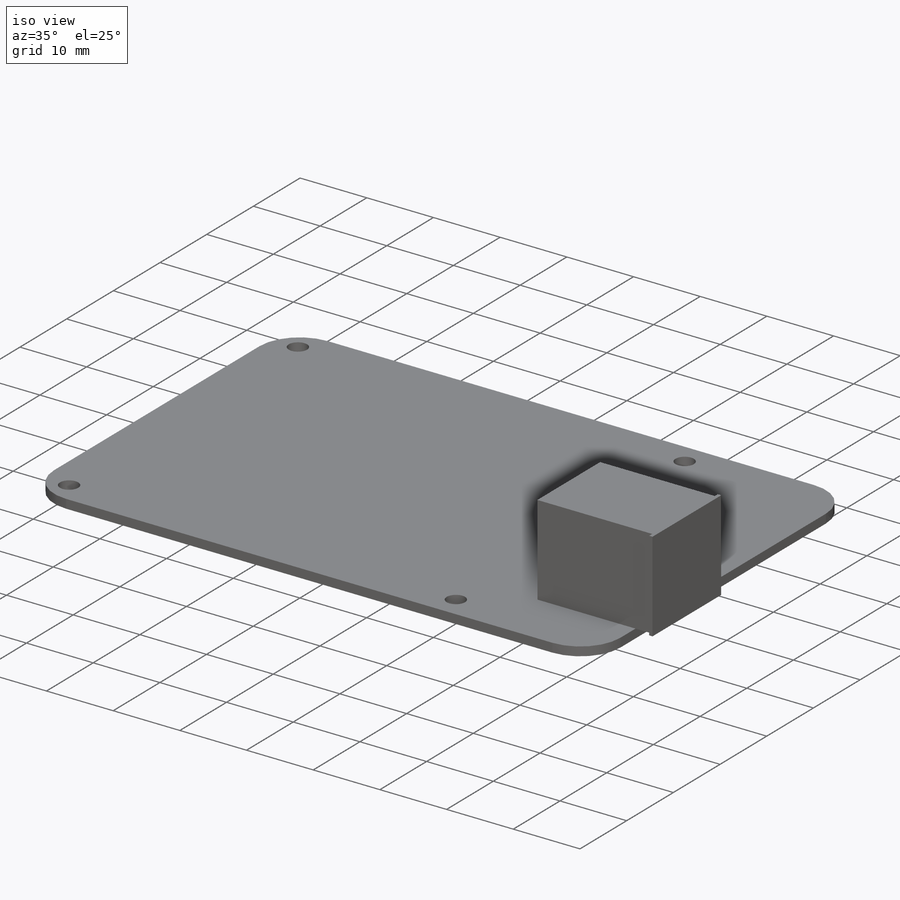
[diagram: iso view]
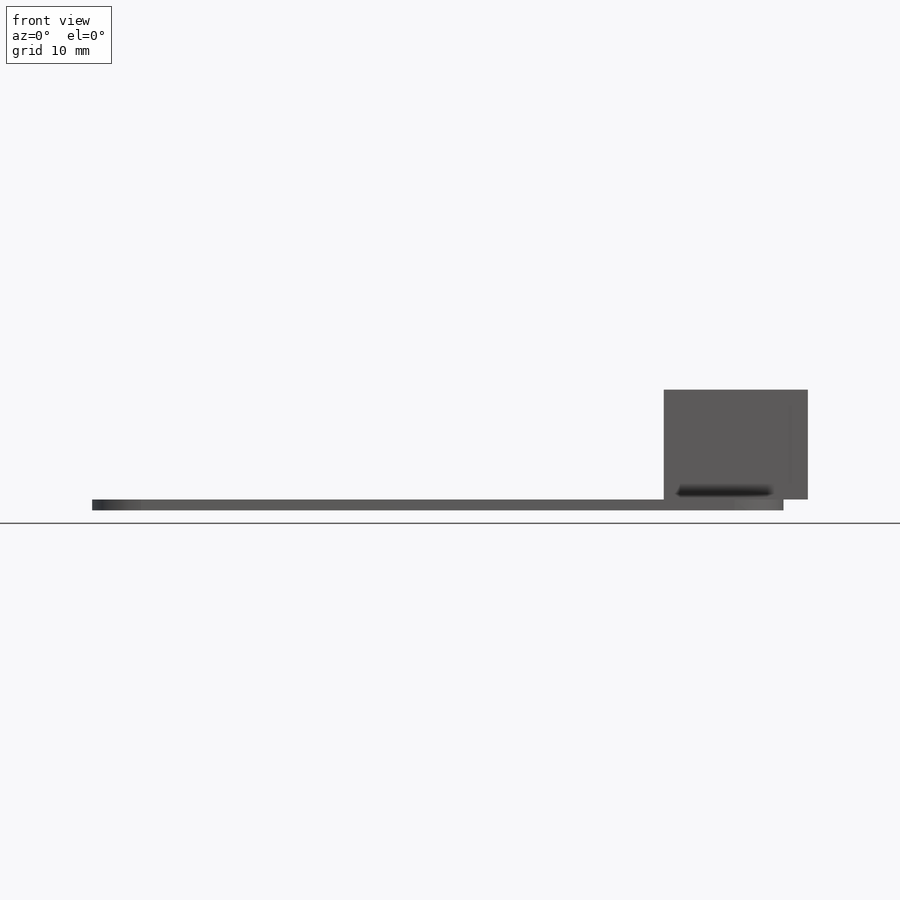
[diagram: front view]
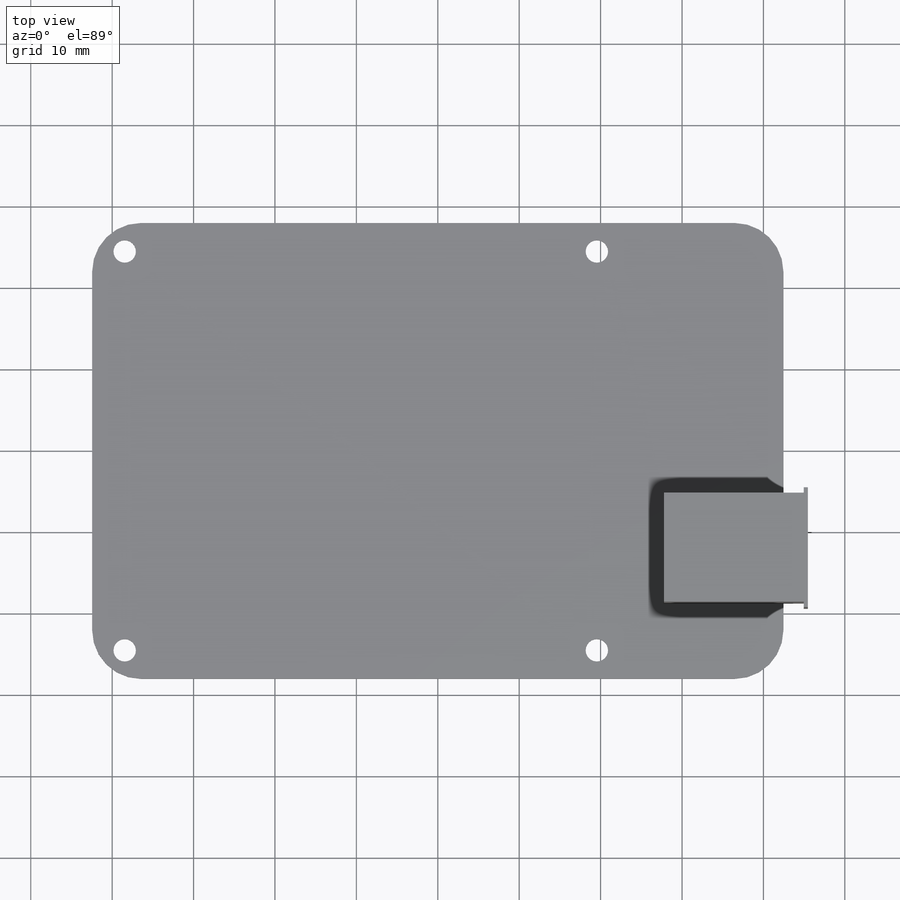
[diagram: top view]
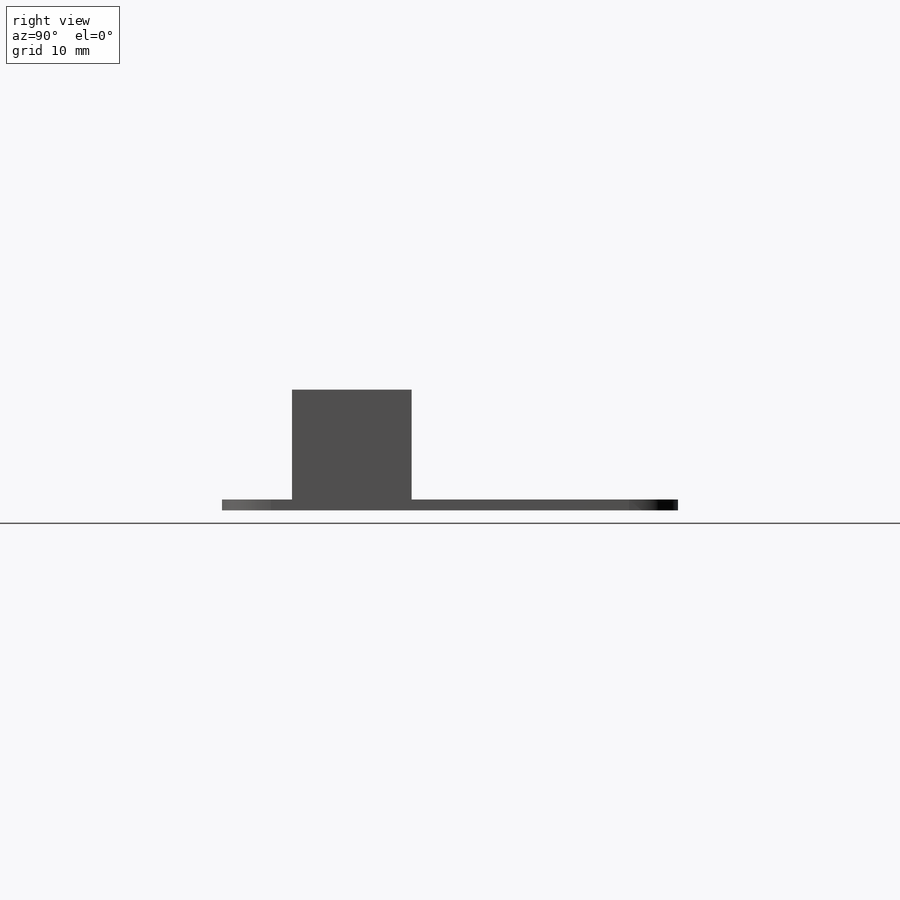
[diagram: right view]
SOLIDWORKS PART (.sldprt)
format: sldprt  version: not decoded by parser v0  size: 184,832 bytes
history: native  units: mm
features: plane x3, sketch x3, extrude x2, material x1, fillet x1, cut_extrude x1 (+8 scaffold rows collapsed)
feature tree (19):
  scaffold x8  (default folders/planes/origin — collapsed)
  material  "Material <sin especificar>"
  plane  "Alzado"
  plane  "Planta"
  plane  "Vista lateral"
  sketch  "Croquis1"  dims[D1=84.92mm D2=56.0mm]
  extrude  "Saliente-Extruir1"  Depth=1.33mm
  fillet  "Redondeo1"  Radius=6mm
  sketch  "Croquis2"  dims[D1=2.75mm D2=58.0mm D3=49.0mm D4=4.0mm]
  cut_extrude  "Cortar-Extruir1"  Depth=1.33mm
  sketch  "Croquis3"  dims[c1.D1=17.7mm c1.D2=0.5mm c1.D3=3.0mm c1.D4=13.61mm c1.D5=14.7mm c2.D1=17.7mm c2.D2=13.4mm c2.D3=3.0mm c2.D4=14.7mm c2.D5=0.5mm]
  extrude  "Saliente-Extruir2"  Depth=13.5mm
decode coverage: 7 of 7 modeling features carry decoded parameters
note: suppression state not decoded; provenance and decode notes live in map.json
